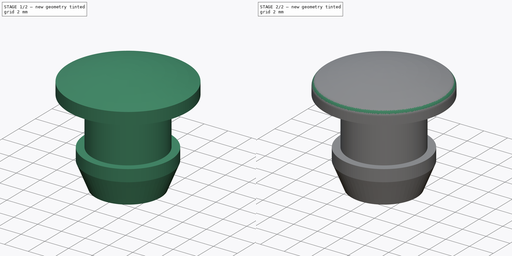
[diagram: build sequence overview — one tinted view per stage of 2, left to right]
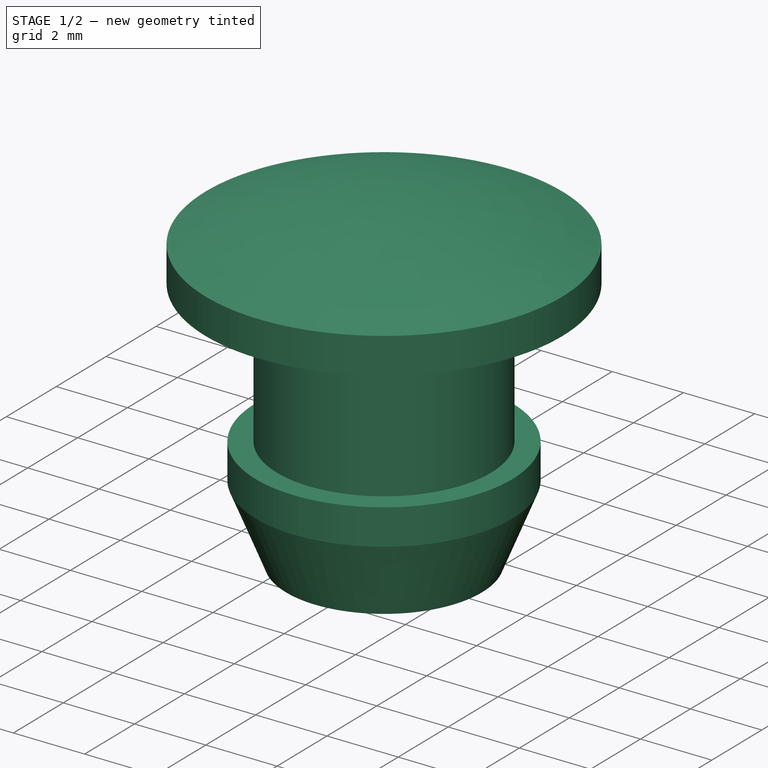
[diagram: stage 1 of 2 — iso view after this stage's code; geometry added in this stage tinted green]
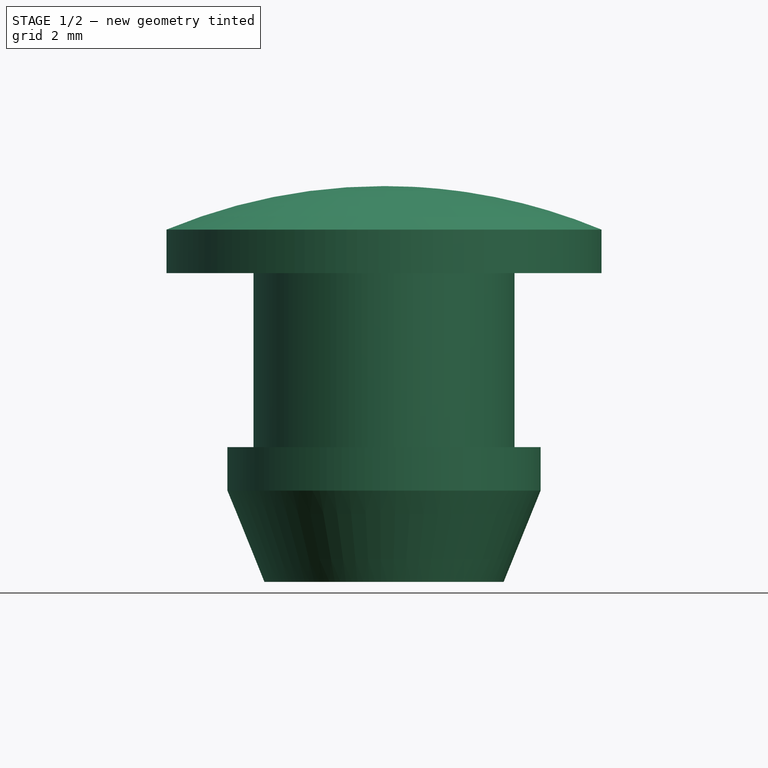
[diagram: stage 1 of 2 — front view after this stage's code; geometry added in this stage tinted green]
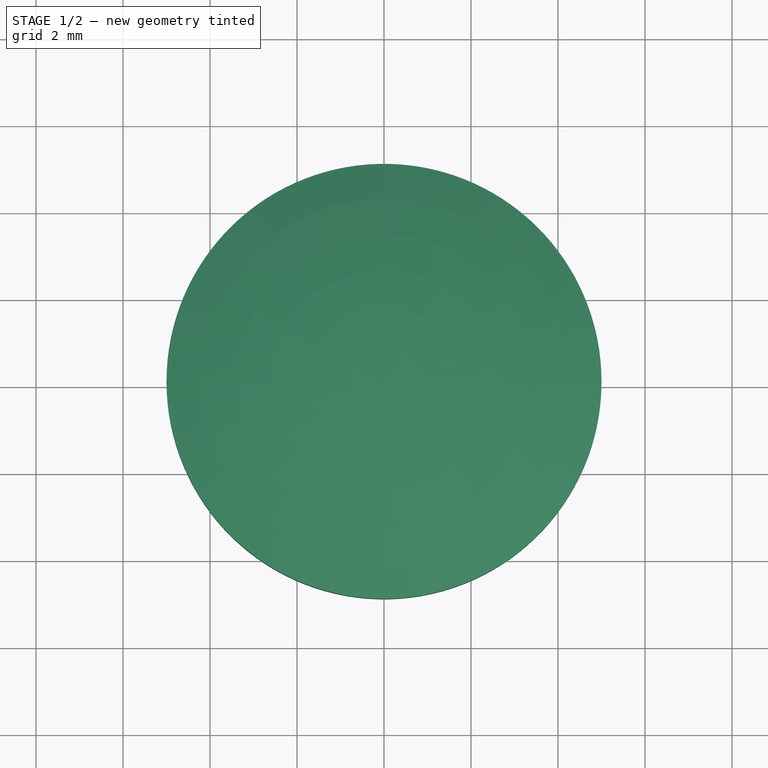
[diagram: stage 1 of 2 — top view after this stage's code; geometry added in this stage tinted green]
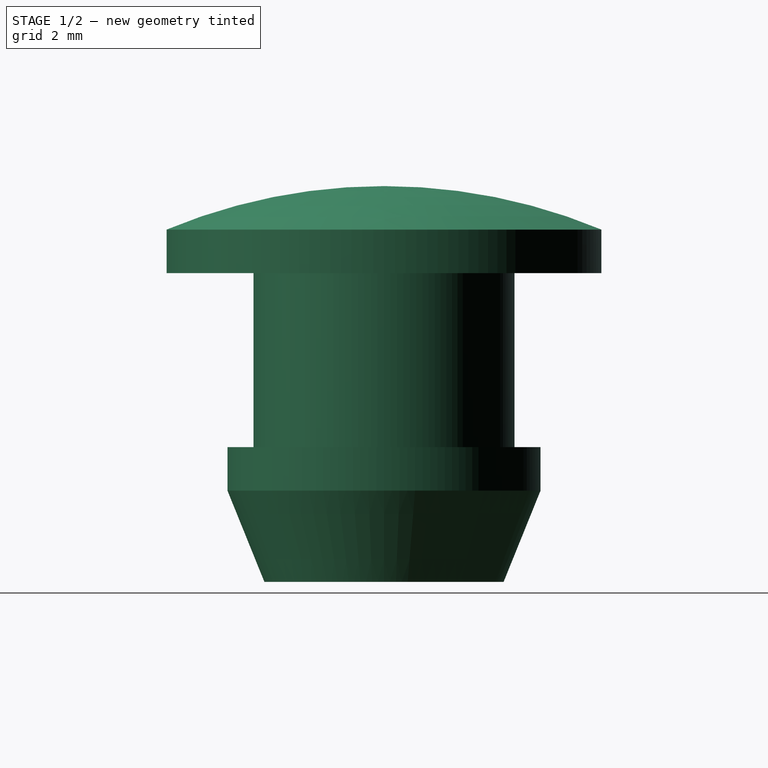
[diagram: stage 1 of 2 — right view after this stage's code; geometry added in this stage tinted green]
FCSTD DOCUMENT  (FreeCAD 2022.709R28846 (Git))
Label: silicone_stopper_foot
License: All rights reserved
LicenseURL: http://en.wikipedia.org/wiki/All_rights_reserved
objects: Sketcher::SketchObject×1, Spreadsheet::Sheet×1, PartDesign::Revolution×1, PartDesign::Fillet×1, PartDesign::Body×1
note: 8 computed .brp shape members not serialized (recipe doc carries the construction recipe); baked Part::Feature solids carry a one-line shape summary decoded from their .brp

FEATURE [Sketcher::SketchObject] Sketch  label="Profile Sketch"
  ArcFitTolerance = 0
  AttachmentSupport = -> [XZ_Plane]
  FullyConstrained = true
  MapMode = 5
  Placement = pos=(0,0,0) rot=(1,0,0;1.5708rad)
  Support = -> [XZ_Plane]
  TreeRank = 0
  expr: Constraints[19] = <<Spreadsheet>>.DIA_A / 2
  expr: Constraints[20] = <<Spreadsheet>>.DIA_B / 2
  expr: Constraints[24] = <<Spreadsheet>>.H_C
  expr: Constraints[25] = <<Spreadsheet>>.THK_E / 2
  expr: Constraints[26] = <<Spreadsheet>>.THK_D
  sketch-geometry (11):
    g0: LineSegment StartX=0 StartY=0 StartZ=0 EndX=0 EndY=2 EndZ=0
    g1: LineSegment StartX=1.75 StartY=-7.1 StartZ=0 EndX=2.75 EndY=-7.1 EndZ=0
    g2: LineSegment StartX=2.75 StartY=-7.1 StartZ=0 EndX=3.6 EndY=-5 EndZ=0
    g3: LineSegment StartX=3.6 StartY=-5 StartZ=0 EndX=3.6 EndY=-4 EndZ=0
    g4: LineSegment StartX=3.6 StartY=-4 StartZ=0 EndX=3 EndY=-4 EndZ=0
    g5: LineSegment StartX=3 StartY=-4 StartZ=0 EndX=3 EndY=0 EndZ=0
    g6: LineSegment StartX=3 StartY=0 StartZ=0 EndX=5 EndY=0 EndZ=0
    g7: LineSegment StartX=5 StartY=0 StartZ=0 EndX=5 EndY=1 EndZ=0
    g8: ArcOfCircle CenterX=0 CenterY=-11 CenterZ=0 NormalX=0 NormalY=0 NormalZ=1 AngleXU=0 Radius=13 StartAngle=1.17601 EndAngle=1.5708
    g9: LineSegment StartX=1.75 StartY=-7.1 StartZ=0 EndX=1.75 EndY=0 EndZ=0
    g10: LineSegment StartX=1.75 StartY=0 StartZ=0 EndX=0 EndY=0 EndZ=0
  constraints (34):
    c: Coincident(g0,g-1)
    c: PointOnObject(g0,g-2)
    c: Horizontal(g1)
    c: Coincident(g2,g1)
    c: Coincident(g3,g2)
    c: Vertical(g3)
    c: Coincident(g4,g3)
    c: Horizontal(g4)
    c: Coincident(g5,g4)
    c: PointOnObject(g5,g-1)
    c: Vertical(g5)
    c: Coincident(g6,g5)
    c: PointOnObject(g6,g-1)
    c: Coincident(g7,g6)
    c: Vertical(g7)
    c: Coincident(g8,g0)
    c: Coincident(g8,g7)
    c: Vertical(g9)
    c: Coincident(g1,g9)
    c: DistanceX(g0,g4) = 3
    c: DistanceX(g0,g6) = 5
    c: Coincident(g10,g9)
    c: Coincident(g10,g0)
    c: Horizontal(g10)
    c: DistanceY(g5,g5) = 4
    c: DistanceX(g10,g10) = 1.75
    c: DistanceY(g0,g0) = 2
    c: Vertical(g0,g8)
    c: DistanceY(g1,g0) = 9.1
    c: DistanceY(g1,g6) = 7.1
    c: DistanceX(g0,g2) = 3.6
    c: DistanceY(g3,g3) = 1
    c: DistanceX(g0,g1) = 2.75
    c: DistanceY(g7,g7) = 1
FEATURE [Spreadsheet::Sheet] Spreadsheet
  PythonMode = false
  ShowCells = 0
  TreeRank = 0
  cells = A2=Diameter A; B2(DIA_A)=6; A3=Upper Diameter B; B3(DIA_B)=10; A4=Height C; B4(H_C)=4; A5=Upper Thickness D; B5(THK_D)=2; A6=Upper Thickness E; B6(THK_E)=3.5
FEATURE [PartDesign::Revolution] Revolution
  Angle = 360
  Axis = (0,-2e-16,1)
  Base = (0,0,0)
  ClaimChildren = false
  Fit = 0
  FitJoin = 0
  InnerFit = 0
  InnerFitJoin = 0
  NewSolid = false
  Placement = pos=(0,0,0) rot=(1,0,0;1.5708rad)
  Profile = -> Sketch
  ReferenceAxis = -> Sketch [V_Axis]
  Reversed = true
  Suppress = false
  TreeRank = 0
  _ProfileBasedVersion = 0
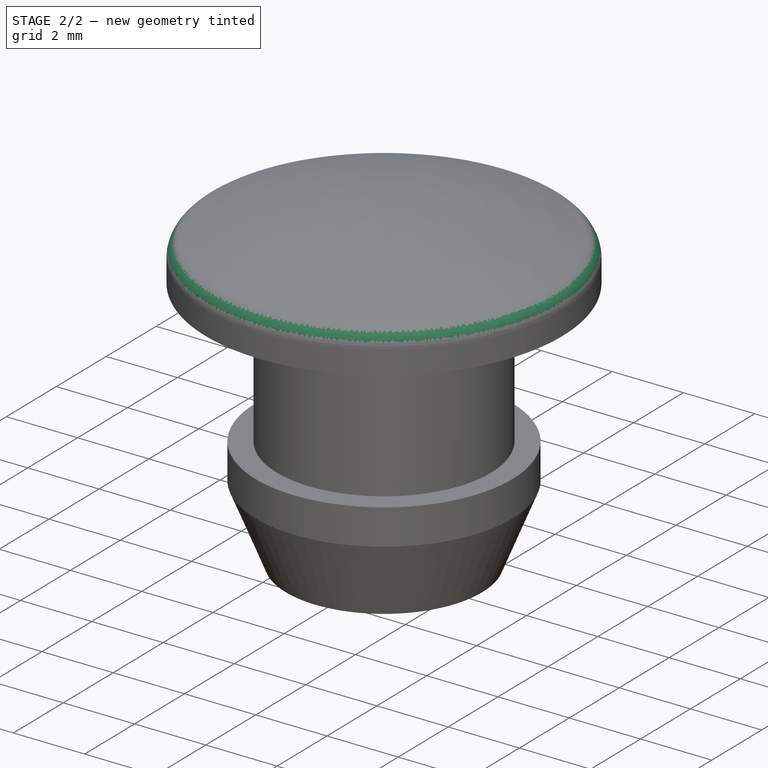
[diagram: stage 2 of 2 — iso view after this stage's code; geometry added in this stage tinted green]
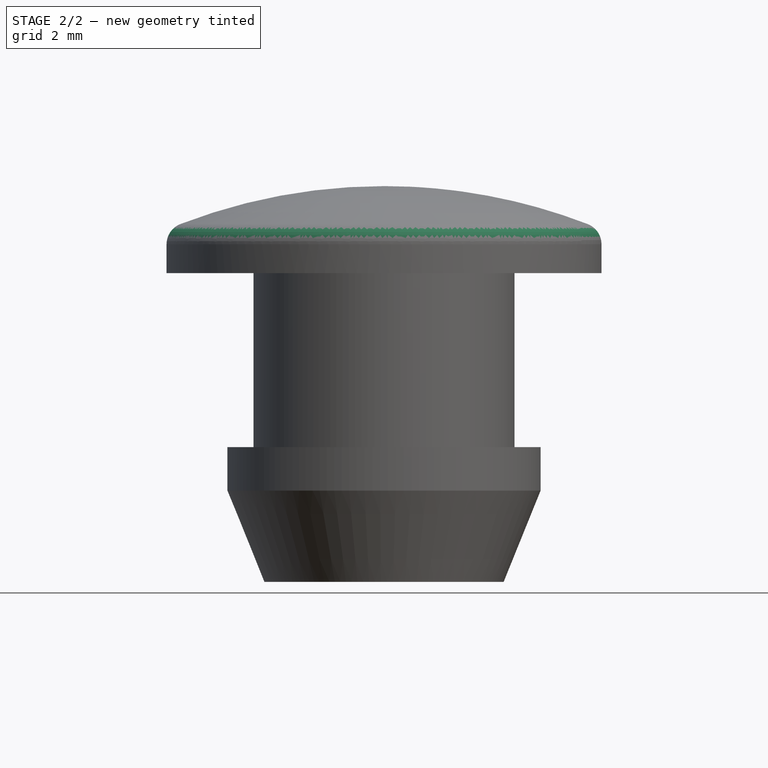
[diagram: stage 2 of 2 — front view after this stage's code; geometry added in this stage tinted green]
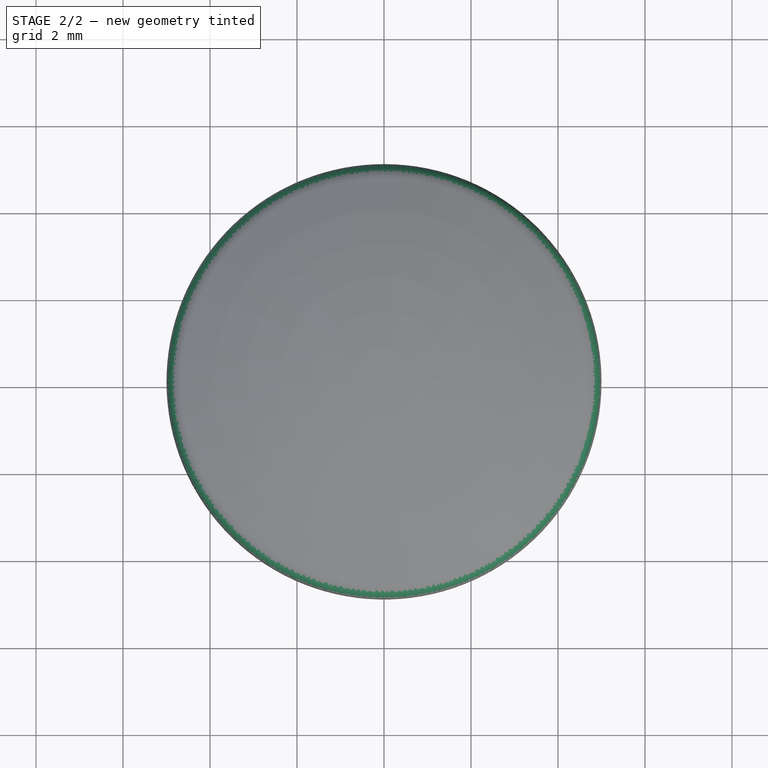
[diagram: stage 2 of 2 — top view after this stage's code; geometry added in this stage tinted green]
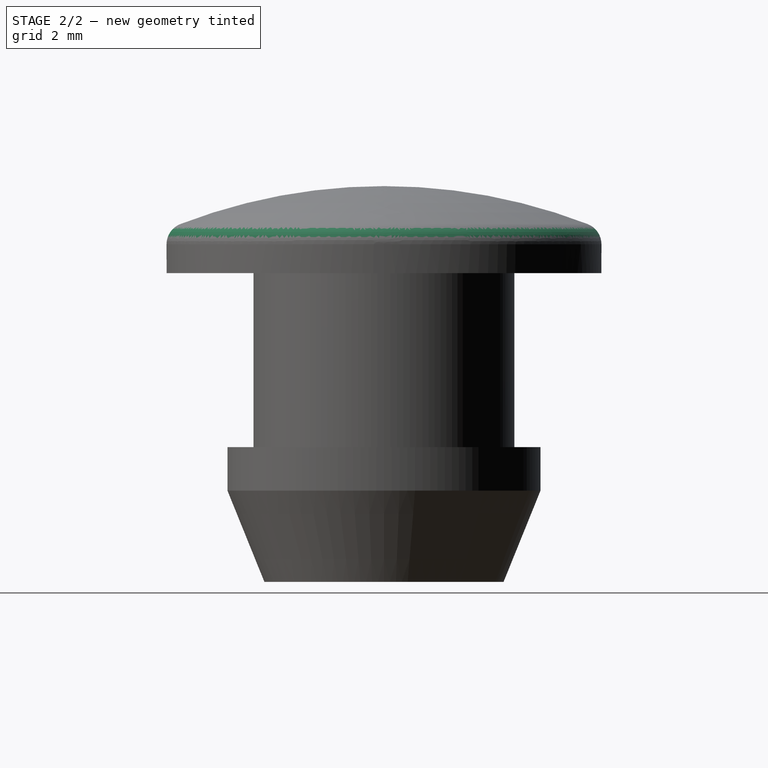
[diagram: stage 2 of 2 — right view after this stage's code; geometry added in this stage tinted green]
FEATURE [PartDesign::Fillet] Fillet
  Base = -> Revolution [Edge4]
  BaseFeature = -> Revolution
  NewSolid = false
  Placement = pos=(0,0,0) rot=(1,0,0;1.5708rad)
  Radius = 0.5
  SupportTransform = false
  Suppress = false
  TreeRank = 0
FEATURE [PartDesign::Body] Body  label="Silicone Stopper Foot"
  AutoGroupSolids = false
  ClaimAllChildren = false
  ExportMode = 0
  Group = -> [Sketch,Revolution,Fillet]
  Origin = -> Origin
  Tip = -> Fillet
  TreeRank = 0
  _ExportChildren = -> [Revolution,Fillet]
  _GroupVersion = 1
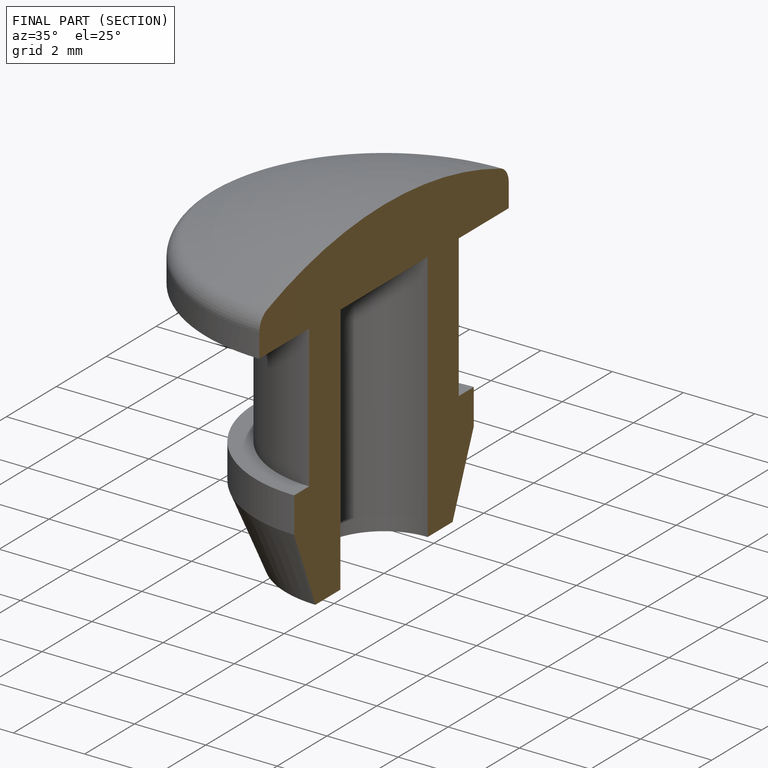
[diagram: finished part — half-section view (interior)]
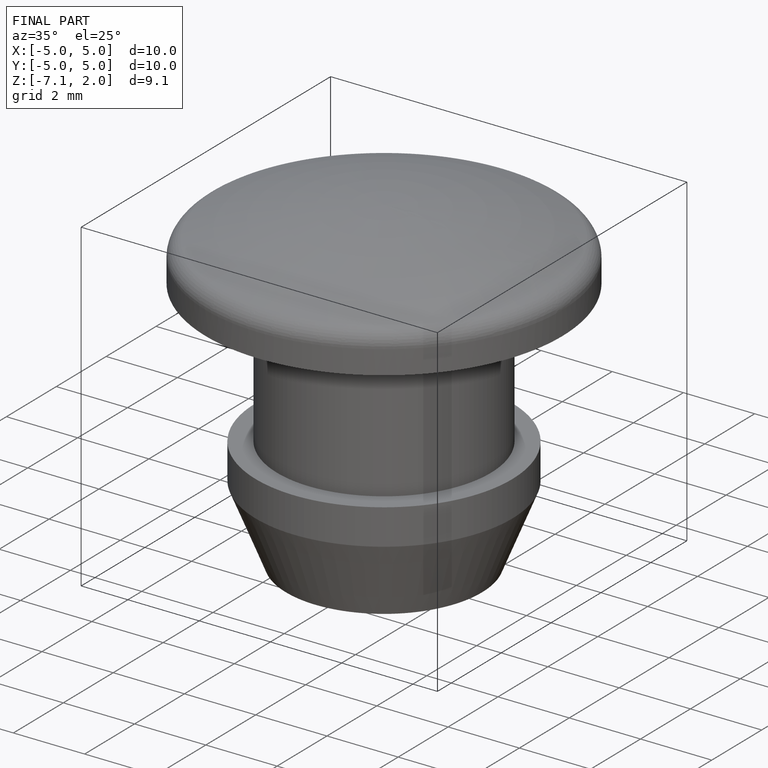
[diagram: finished part — iso view with bounding-box wireframe]
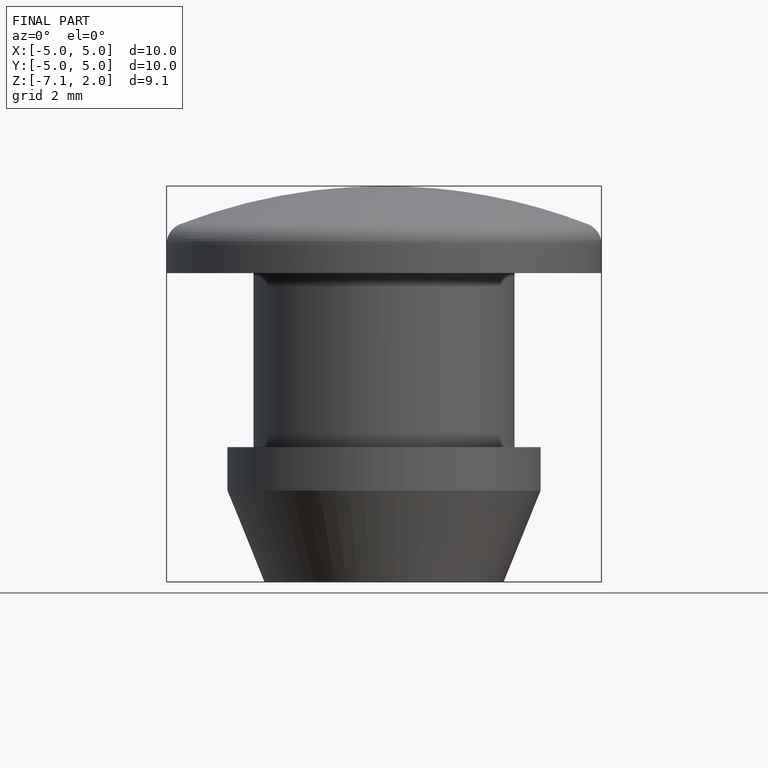
[diagram: finished part — front view with bounding-box wireframe]
